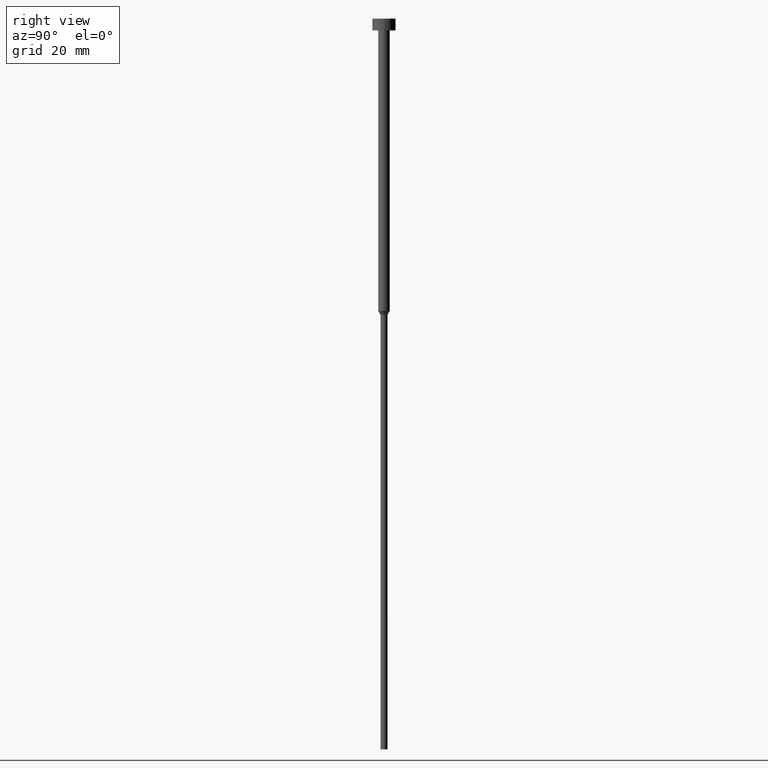
[diagram: clean part render]
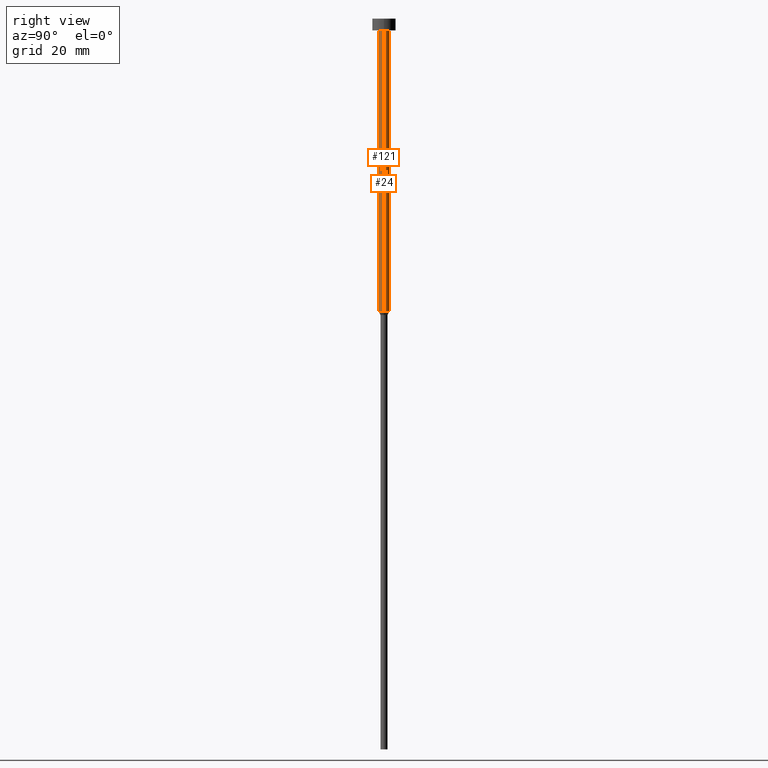
[diagram: same view with one multi-face feature highlighted, each face labeled with its STEP entity id]
A machine part, right view. The highlighted faces form ONE feature: a constant-radius fillet chain: 2 tangent blend faces with common blend radius 1 mm. The faces share edges in the B-rep.
Their STEP definitions:
[1] entity #121 (Cylinder):
#14 = CIRCLE ( 'NONE', #216, 1.000000000000003553 ) ;
#22 = CARTESIAN_POINT ( 'NONE',  ( 1.000000000000003331, 0.000000000000000000, 0.000000000000000000 ) ) ;
#38 = DIRECTION ( 'NONE',  ( 1.000000000000000000, 0.000000000000000000, 0.000000000000000000 ) ) ;
#45 = VERTEX_POINT ( 'NONE', #170 ) ;
#49 = EDGE_LOOP ( 'NONE', ( #256, #289, #328, #57 ) ) ;
#57 = ORIENTED_EDGE ( 'NONE', *, *, #72, .F. ) ;
#61 = CARTESIAN_POINT ( 'NONE',  ( -1.000000000000003331, 1.224646799147357151E-16, 0.000000000000000000 ) ) ;
#72 = EDGE_CURVE ( 'NONE', #145, #45, #14, .T. ) ;
#94 = EDGE_CURVE ( 'NONE', #330, #45, #118, .T. ) ;
#102 = DIRECTION ( 'NONE',  ( -0.000000000000000000, -0.000000000000000000, 1.000000000000000000 ) ) ;
#117 = VECTOR ( 'NONE', #350, 1000.000000000000000 ) ;
#118 = LINE ( 'NONE', #22, #171 ) ;
#121 = ADVANCED_FACE ( 'NONE', ( #340 ), #211, .T. ) ;
#137 = VERTEX_POINT ( 'NONE', #275 ) ;
#144 = DIRECTION ( 'NONE',  ( -0.000000000000000000, -0.000000000000000000, 1.000000000000000000 ) ) ;
#145 = VERTEX_POINT ( 'NONE', #179 ) ;
#170 = CARTESIAN_POINT ( 'NONE',  ( 1.000000000000003553, 0.000000000000000000, -2.000000000000000444 ) ) ;
#171 = VECTOR ( 'NONE', #235, 1000.000000000000000 ) ;
#176 = AXIS2_PLACEMENT_3D ( 'NONE', #182, #102, #277 ) ;
#177 = CARTESIAN_POINT ( 'NONE',  ( 1.000000000000003109, 0.000000000000000000, -50.00000000000000000 ) ) ;
#179 = CARTESIAN_POINT ( 'NONE',  ( -1.000000000000003553, 1.224646799147357398E-16, -2.000000000000000444 ) ) ;
#182 = CARTESIAN_POINT ( 'NONE',  ( 0.000000000000000000, 0.000000000000000000, 0.000000000000000000 ) ) ;
#211 = CYLINDRICAL_SURFACE ( 'NONE', #176, 1.000000000000003331 ) ;
#216 = AXIS2_PLACEMENT_3D ( 'NONE', #347, #296, #38 ) ;
#221 = AXIS2_PLACEMENT_3D ( 'NONE', #320, #144, #346 ) ;
#235 = DIRECTION ( 'NONE',  ( -0.000000000000000000, -0.000000000000000000, 1.000000000000000000 ) ) ;
#248 = EDGE_CURVE ( 'NONE', #137, #145, #287, .T. ) ;
#256 = ORIENTED_EDGE ( 'NONE', *, *, #248, .F. ) ;
#262 = CIRCLE ( 'NONE', #221, 1.000000000000003109 ) ;
#273 = EDGE_CURVE ( 'NONE', #137, #330, #262, .T. ) ;
#275 = CARTESIAN_POINT ( 'NONE',  ( -1.000000000000003109, 1.224646799147356905E-16, -50.00000000000000000 ) ) ;
#277 = DIRECTION ( 'NONE',  ( 1.000000000000000000, 0.000000000000000000, 0.000000000000000000 ) ) ;
#287 = LINE ( 'NONE', #61, #117 ) ;
#289 = ORIENTED_EDGE ( 'NONE', *, *, #273, .T. ) ;
#296 = DIRECTION ( 'NONE',  ( -0.000000000000000000, -0.000000000000000000, 1.000000000000000000 ) ) ;
#320 = CARTESIAN_POINT ( 'NONE',  ( 0.000000000000000000, 0.000000000000000000, -50.00000000000000000 ) ) ;
#328 = ORIENTED_EDGE ( 'NONE', *, *, #94, .T. ) ;
#330 = VERTEX_POINT ( 'NONE', #177 ) ;
#340 = FACE_OUTER_BOUND ( 'NONE', #49, .T. ) ;
#346 = DIRECTION ( 'NONE',  ( 1.000000000000000000, 0.000000000000000000, 0.000000000000000000 ) ) ;
#347 = CARTESIAN_POINT ( 'NONE',  ( 0.000000000000000000, 0.000000000000000000, -2.000000000000000444 ) ) ;
#350 = DIRECTION ( 'NONE',  ( -0.000000000000000000, -0.000000000000000000, 1.000000000000000000 ) ) ;
[2] entity #24 (Cylinder):
#22 = CARTESIAN_POINT ( 'NONE',  ( 1.000000000000003331, 0.000000000000000000, 0.000000000000000000 ) ) ;
#24 = ADVANCED_FACE ( 'NONE', ( #43 ), #85, .T. ) ;
#28 = CARTESIAN_POINT ( 'NONE',  ( 0.000000000000000000, 0.000000000000000000, 0.000000000000000000 ) ) ;
#41 = DIRECTION ( 'NONE',  ( 1.000000000000000000, 0.000000000000000000, 0.000000000000000000 ) ) ;
#43 = FACE_OUTER_BOUND ( 'NONE', #183, .T. ) ;
#45 = VERTEX_POINT ( 'NONE', #170 ) ;
#50 = CIRCLE ( 'NONE', #234, 1.000000000000003109 ) ;
#61 = CARTESIAN_POINT ( 'NONE',  ( -1.000000000000003331, 1.224646799147357151E-16, 0.000000000000000000 ) ) ;
#62 = DIRECTION ( 'NONE',  ( 1.000000000000000000, 0.000000000000000000, 0.000000000000000000 ) ) ;
#63 = CARTESIAN_POINT ( 'NONE',  ( 0.000000000000000000, 0.000000000000000000, -50.00000000000000000 ) ) ;
#85 = CYLINDRICAL_SURFACE ( 'NONE', #305, 1.000000000000003331 ) ;
#94 = EDGE_CURVE ( 'NONE', #330, #45, #118, .T. ) ;
#117 = VECTOR ( 'NONE', #350, 1000.000000000000000 ) ;
#118 = LINE ( 'NONE', #22, #171 ) ;
#119 = ORIENTED_EDGE ( 'NONE', *, *, #94, .F. ) ;
#124 = ORIENTED_EDGE ( 'NONE', *, *, #248, .T. ) ;
#132 = ORIENTED_EDGE ( 'NONE', *, *, #162, .F. ) ;
#137 = VERTEX_POINT ( 'NONE', #275 ) ;
#145 = VERTEX_POINT ( 'NONE', #179 ) ;
#146 = EDGE_CURVE ( 'NONE', #330, #137, #50, .T. ) ;
#162 = EDGE_CURVE ( 'NONE', #45, #145, #229, .T. ) ;
#170 = CARTESIAN_POINT ( 'NONE',  ( 1.000000000000003553, 0.000000000000000000, -2.000000000000000444 ) ) ;
#171 = VECTOR ( 'NONE', #235, 1000.000000000000000 ) ;
#174 = DIRECTION ( 'NONE',  ( -0.000000000000000000, -0.000000000000000000, 1.000000000000000000 ) ) ;
#177 = CARTESIAN_POINT ( 'NONE',  ( 1.000000000000003109, 0.000000000000000000, -50.00000000000000000 ) ) ;
#179 = CARTESIAN_POINT ( 'NONE',  ( -1.000000000000003553, 1.224646799147357398E-16, -2.000000000000000444 ) ) ;
#183 = EDGE_LOOP ( 'NONE', ( #233, #124, #132, #119 ) ) ;
#204 = DIRECTION ( 'NONE',  ( -0.000000000000000000, -0.000000000000000000, 1.000000000000000000 ) ) ;
#217 = AXIS2_PLACEMENT_3D ( 'NONE', #332, #204, #62 ) ;
#229 = CIRCLE ( 'NONE', #217, 1.000000000000003553 ) ;
#233 = ORIENTED_EDGE ( 'NONE', *, *, #146, .T. ) ;
#234 = AXIS2_PLACEMENT_3D ( 'NONE', #63, #174, #41 ) ;
#235 = DIRECTION ( 'NONE',  ( -0.000000000000000000, -0.000000000000000000, 1.000000000000000000 ) ) ;
#248 = EDGE_CURVE ( 'NONE', #137, #145, #287, .T. ) ;
#261 = DIRECTION ( 'NONE',  ( -0.000000000000000000, -0.000000000000000000, 1.000000000000000000 ) ) ;
#275 = CARTESIAN_POINT ( 'NONE',  ( -1.000000000000003109, 1.224646799147356905E-16, -50.00000000000000000 ) ) ;
#287 = LINE ( 'NONE', #61, #117 ) ;
#305 = AXIS2_PLACEMENT_3D ( 'NONE', #28, #261, #351 ) ;
#330 = VERTEX_POINT ( 'NONE', #177 ) ;
#332 = CARTESIAN_POINT ( 'NONE',  ( 0.000000000000000000, 0.000000000000000000, -2.000000000000000444 ) ) ;
#350 = DIRECTION ( 'NONE',  ( -0.000000000000000000, -0.000000000000000000, 1.000000000000000000 ) ) ;
#351 = DIRECTION ( 'NONE',  ( 1.000000000000000000, 0.000000000000000000, 0.000000000000000000 ) ) ;